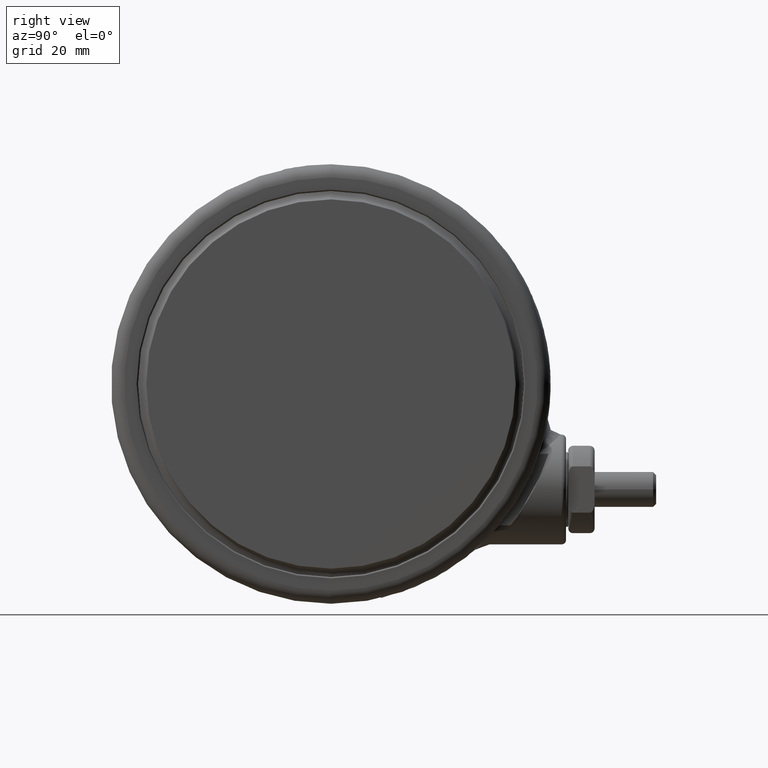
[diagram: clean part render]
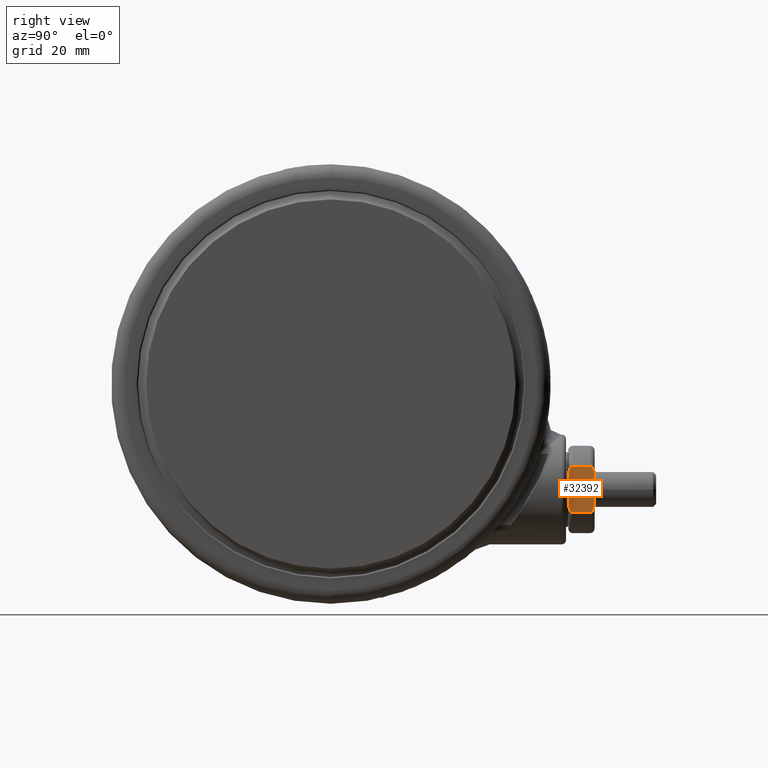
[diagram: same view with one face highlighted and labeled with its STEP entity id]
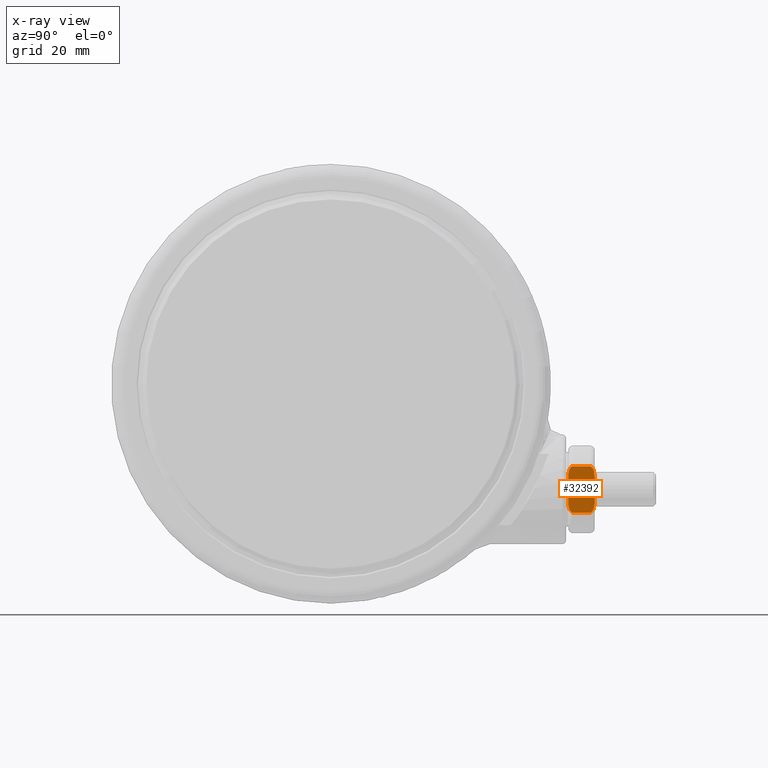
[diagram: x-ray of the same camera — body ghosted, the highlighted face saturated]
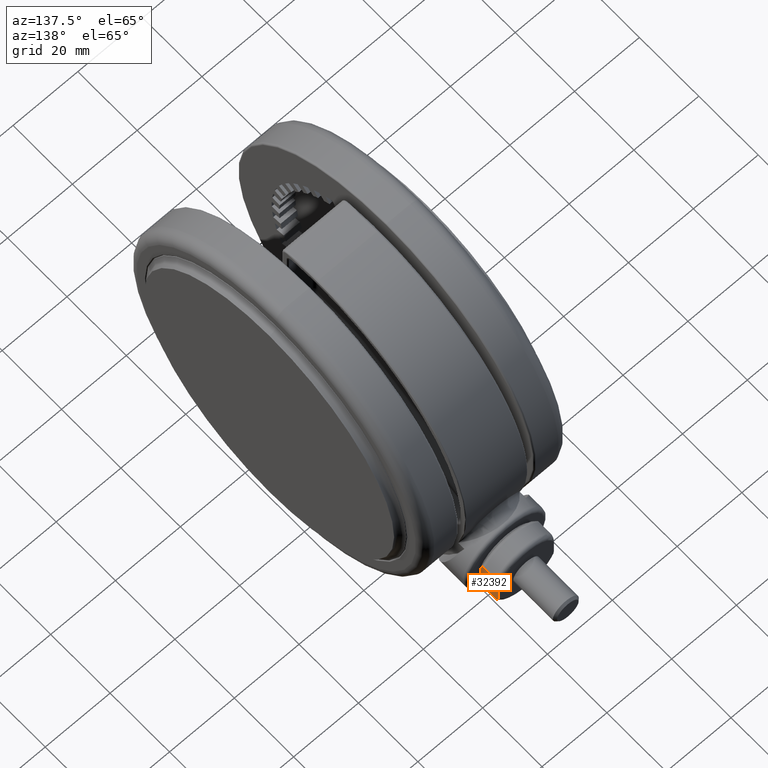
[diagram: same view with one face highlighted and labeled with its STEP entity id]
A machine part, right view. The second image highlights one B-rep face of the part: STEP entity #32392.
The next image is the same camera in x-ray: the body ghosted, the highlighted face saturated — about 0% of this face is hidden behind the body in this view.
A second angle (auxiliary view) of the same face is appended — the face is thin or edge-on in the first view.
In plain terms, the highlighted planar face has unit normal (-1, -0, 0).
Its self-contained STEP definition (entity closure, byte-faithful):
#11 = CARTESIAN_POINT ( 'NONE',  ( 20.33594577717705600, 59.94639196558829000, -15.80000000000000800 ) ) ;
#434 = DIRECTION ( 'NONE',  ( 1.000000000000000000, 1.161330068381886000E-016, -1.224646799147352000E-016 ) ) ;
#497 = EDGE_CURVE ( 'NONE', #23748, #32051, #22690, .T. ) ;
#1312 = CARTESIAN_POINT ( 'NONE',  ( 29.26782687642636200, 58.90000000000003400, -15.80000000000000800 ) ) ;
#1574 = PLANE ( 'NONE',  #25336 ) ;
#1997 = CARTESIAN_POINT ( 'NONE',  ( 18.92545952693666000, 54.62624462623588100, -15.80000000000000800 ) ) ;
#2273 = CARTESIAN_POINT ( 'NONE',  ( 29.22161234199456100, 59.15760131995573100, -15.80000000000000400 ) ) ;
#2382 = CARTESIAN_POINT ( 'NONE',  ( 28.41236036611224900, 59.77067842900429900, -15.80000000000001500 ) ) ;
#2504 = CARTESIAN_POINT ( 'NONE',  ( 19.58164743081571800, 59.77626978432886100, -15.80000000000000800 ) ) ;
#2711 = CARTESIAN_POINT ( 'NONE',  ( 18.73217312357362400, 60.00000000000003600, -15.80000000000000800 ) ) ;
#3355 = LINE ( 'NONE', #2711, #29131 ) ;
#3371 = CARTESIAN_POINT ( 'NONE',  ( 27.66405422282292600, 54.05360803441173800, -15.80000000000000800 ) ) ;
#3421 = CARTESIAN_POINT ( 'NONE',  ( 21.36181880834541500, 54.00000000000003600, -15.80000000000000800 ) ) ;
#3933 = EDGE_CURVE ( 'NONE', #13857, #32051, #3355, .T. ) ;
#4069 = DIRECTION ( 'NONE',  ( 1.161330068381886000E-016, -1.000000000000000000, -4.413456915335259200E-017 ) ) ;
#4494 = CARTESIAN_POINT ( 'NONE',  ( 19.23529851971524000, 54.38852524621129400, -15.80000000000000800 ) ) ;
#4628 = VERTEX_POINT ( 'NONE', #3421 ) ;
#4764 = CARTESIAN_POINT ( 'NONE',  ( 29.26782687642636200, 58.90000000000003400, -15.80000000000000800 ) ) ;
#4876 = CARTESIAN_POINT ( 'NONE',  ( 27.91544957079377200, 59.90920059051454400, -15.80000000000001500 ) ) ;
#4995 = CARTESIAN_POINT ( 'NONE',  ( 19.02258604484569200, 59.46230101232291800, -15.80000000000000800 ) ) ;
#5033 = B_SPLINE_CURVE_WITH_KNOTS ( 'NONE', 3,
 ( #30812, #23251, #18338, #3371, #20832, #5864, #23360, #8394, #25868, #10906, #28371, #13413 ),
 .UNSPECIFIED., .F., .F.,
 ( 4, 2, 2, 2, 2, 4 ),
 ( 0.0000000000000000000, 0.0007701095471471806900, 0.001540219094294361400, 0.002310328641441542200, 0.002695383415015126400, 0.003080438188588710600 ),
 .UNSPECIFIED. ) ;
#5486 = EDGE_CURVE ( 'NONE', #13857, #27792, #21272, .T. ) ;
#5494 = DIRECTION ( 'NONE',  ( 1.161330068381886000E-016, -1.000000000000000000, -4.413456915335259200E-017 ) ) ;
#5864 = CARTESIAN_POINT ( 'NONE',  ( 28.41835256918427500, 54.22373021567121800, -15.80000000000000800 ) ) ;
#6999 = CARTESIAN_POINT ( 'NONE',  ( 19.58763963388775400, 54.22932157099580100, -15.80000000000000800 ) ) ;
#7246 = CARTESIAN_POINT ( 'NONE',  ( 26.63818119165457400, 54.00000000000003600, -15.80000000000000800 ) ) ;
#7393 = CARTESIAN_POINT ( 'NONE',  ( 27.15303954897143900, 59.99224030502899300, -15.80000000000000400 ) ) ;
#7506 = CARTESIAN_POINT ( 'NONE',  ( 18.77870012500810800, 59.15795326585612200, -15.80000000000000800 ) ) ;
#8394 = CARTESIAN_POINT ( 'NONE',  ( 28.97741395515430800, 54.53769898767711800, -15.80000000000000400 ) ) ;
#9522 = CARTESIAN_POINT ( 'NONE',  ( 20.08455042920623200, 54.09079940948554800, -15.80000000000001500 ) ) ;
#9713 = LINE ( 'NONE', #27891, #21445 ) ;
#9913 = CARTESIAN_POINT ( 'NONE',  ( 26.63818119165457400, 60.00000000000003600, -15.80000000000000800 ) ) ;
#10030 = CARTESIAN_POINT ( 'NONE',  ( 18.73217312357362400, 58.90000000000003400, -15.80000000000000800 ) ) ;
#10339 = CARTESIAN_POINT ( 'NONE',  ( 18.73217312357362400, 54.00000000000003600, -15.80000000000000800 ) ) ;
#10387 = ORIENTED_EDGE ( 'NONE', *, *, #23649, .T. ) ;
#10906 = CARTESIAN_POINT ( 'NONE',  ( 29.22129987499188200, 54.84204673414397000, -15.80000000000000800 ) ) ;
#11331 = VECTOR ( 'NONE', #29424, 1000.000000000000000 ) ;
#12037 = CARTESIAN_POINT ( 'NONE',  ( 20.84696045102855400, 54.00775969497107100, -15.80000000000000800 ) ) ;
#12426 = CARTESIAN_POINT ( 'NONE',  ( 21.10424727586531900, 60.00000000000003600, -15.80000000000001100 ) ) ;
#13413 = CARTESIAN_POINT ( 'NONE',  ( 29.26782687642636600, 55.10000000000003700, -15.80000000000000800 ) ) ;
#13857 = VERTEX_POINT ( 'NONE', #30840 ) ;
#14016 = CARTESIAN_POINT ( 'NONE',  ( 18.73217312357362400, 60.00000000000003600, -15.80000000000000800 ) ) ;
#14533 = CARTESIAN_POINT ( 'NONE',  ( 21.36181880834541500, 54.00000000000003600, -15.80000000000000800 ) ) ;
#14818 = CARTESIAN_POINT ( 'NONE',  ( 28.97791877551098600, 59.46215408130819900, -15.80000000000000400 ) ) ;
#14919 = CARTESIAN_POINT ( 'NONE',  ( 21.36181880834541100, 60.00000000000003600, -15.80000000000000800 ) ) ;
#15226 = CARTESIAN_POINT ( 'NONE',  ( 26.63818119165457400, 60.00000000000003600, -15.80000000000000800 ) ) ;
#16301 = EDGE_LOOP ( 'NONE', ( #20784, #17809, #29777, #23814, #20617, #10387, #30941, #28613 ) ) ;
#16792 = VERTEX_POINT ( 'NONE', #22371 ) ;
#16946 = CARTESIAN_POINT ( 'NONE',  ( 18.77838765800542500, 54.84239868004431200, -15.80000000000000800 ) ) ;
#17331 = CARTESIAN_POINT ( 'NONE',  ( 28.65037410100447000, 59.67075768819042000, -15.80000000000000800 ) ) ;
#17448 = CARTESIAN_POINT ( 'NONE',  ( 20.07964047181428300, 59.90834723970846900, -15.80000000000000800 ) ) ;
#17651 = B_SPLINE_CURVE_WITH_KNOTS ( 'NONE', 3,
 ( #24381, #31931, #16946, #1997, #19471, #4494, #21980, #6999, #24486, #9522, #26992, #12037, #29535, #14533 ),
 .UNSPECIFIED., .F., .F.,
 ( 4, 2, 2, 2, 2, 2, 4 ),
 ( 0.0000000000000000000, 0.0003884959165285386000, 0.0007769918330570771900, 0.001165487749585615800, 0.001553983666114154400, 0.002330975499171236400, 0.003107967332228318300 ),
 .UNSPECIFIED. ) ;
#17809 = ORIENTED_EDGE ( 'NONE', *, *, #5486, .T. ) ;
#18338 = CARTESIAN_POINT ( 'NONE',  ( 27.15268964969410300, 54.00770887567938400, -15.80000000000000800 ) ) ;
#18799 = EDGE_CURVE ( 'NONE', #23748, #25784, #31285, .T. ) ;
#19471 = CARTESIAN_POINT ( 'NONE',  ( 19.02208122448899300, 54.53784591869184300, -15.80000000000000400 ) ) ;
#19850 = CARTESIAN_POINT ( 'NONE',  ( 28.28820403779656100, 59.81100489386638900, -15.80000000000000800 ) ) ;
#19967 = CARTESIAN_POINT ( 'NONE',  ( 19.33626403298172700, 59.68259175217173900, -15.80000000000000400 ) ) ;
#20617 = ORIENTED_EDGE ( 'NONE', *, *, #25367, .T. ) ;
#20784 = ORIENTED_EDGE ( 'NONE', *, *, #3933, .F. ) ;
#20832 = CARTESIAN_POINT ( 'NONE',  ( 27.92035952818571300, 54.09165276029160900, -15.80000000000000800 ) ) ;
#21208 = VERTEX_POINT ( 'NONE', #7246 ) ;
#21272 = B_SPLINE_CURVE_WITH_KNOTS ( 'NONE', 3,
 ( #14919, #12426, #29915, #11, #17448, #2504, #19967, #4995, #22480, #7506, #24994, #10030 ),
 .UNSPECIFIED., .F., .F.,
 ( 4, 2, 2, 2, 2, 4 ),
 ( 0.0000000000000000000, 0.0007701095471471730000, 0.001540219094294346000, 0.002310328641441518800, 0.002695383415015111200, 0.003080438188588704100 ),
 .UNSPECIFIED. ) ;
#21374 = EDGE_CURVE ( 'NONE', #27792, #16792, #9713, .T. ) ;
#21445 = VECTOR ( 'NONE', #5494, 1000.000000000000000 ) ;
#21980 = CARTESIAN_POINT ( 'NONE',  ( 19.34962589899552300, 54.32924231180964400, -15.80000000000000400 ) ) ;
#22369 = CARTESIAN_POINT ( 'NONE',  ( 27.66275141158789500, 59.94652828027169300, -15.80000000000001100 ) ) ;
#22371 = CARTESIAN_POINT ( 'NONE',  ( 18.73217312357362400, 55.10000000000003000, -15.80000000000000800 ) ) ;
#22480 = CARTESIAN_POINT ( 'NONE',  ( 18.92471915931157200, 59.37277422114561200, -15.80000000000000400 ) ) ;
#22690 = B_SPLINE_CURVE_WITH_KNOTS ( 'NONE', 3,
 ( #4764, #27263, #2273, #29805, #14818, #32307, #17331, #2382, #19850, #4876, #22369, #7393, #24875, #9913 ),
 .UNSPECIFIED., .F., .F.,
 ( 4, 2, 2, 2, 2, 2, 4 ),
 ( 0.0000000000000000000, 0.0003884959165285354000, 0.0007769918330570708000, 0.001165487749585606200, 0.001553983666114141600, 0.002330975499171217300, 0.003107967332228293600 ),
 .UNSPECIFIED. ) ;
#23153 = LINE ( 'NONE', #10339, #29003 ) ;
#23251 = CARTESIAN_POINT ( 'NONE',  ( 26.89575272413466300, 54.00000000000003600, -15.80000000000001100 ) ) ;
#23360 = CARTESIAN_POINT ( 'NONE',  ( 28.66373596701825800, 54.31740824782831100, -15.80000000000000400 ) ) ;
#23649 = EDGE_CURVE ( 'NONE', #21208, #25784, #5033, .T. ) ;
#23748 = VERTEX_POINT ( 'NONE', #1312 ) ;
#23814 = ORIENTED_EDGE ( 'NONE', *, *, #27567, .T. ) ;
#24381 = CARTESIAN_POINT ( 'NONE',  ( 18.73217312357362400, 55.10000000000003000, -15.80000000000000800 ) ) ;
#24386 = CARTESIAN_POINT ( 'NONE',  ( 29.26782687642636200, 60.00000000000003600, -15.80000000000000800 ) ) ;
#24486 = CARTESIAN_POINT ( 'NONE',  ( 19.71179596220342800, 54.18899510613368900, -15.80000000000000400 ) ) ;
#24496 = CARTESIAN_POINT ( 'NONE',  ( 29.26782687642636600, 55.10000000000003700, -15.80000000000000800 ) ) ;
#24875 = CARTESIAN_POINT ( 'NONE',  ( 26.89554108775182000, 60.00000000000002800, -15.80000000000000400 ) ) ;
#24887 = FACE_OUTER_BOUND ( 'NONE', #16301, .T. ) ;
#24994 = CARTESIAN_POINT ( 'NONE',  ( 18.73217312357341100, 59.03146747588124300, -15.80000000000001100 ) ) ;
#25195 = DIRECTION ( 'NONE',  ( 1.000000000000000000, 1.161330068381886000E-016, -1.224646799147352000E-016 ) ) ;
#25336 = AXIS2_PLACEMENT_3D ( 'NONE', #14016, #28986, #4069 ) ;
#25367 = EDGE_CURVE ( 'NONE', #4628, #21208, #23153, .T. ) ;
#25784 = VERTEX_POINT ( 'NONE', #24496 ) ;
#25868 = CARTESIAN_POINT ( 'NONE',  ( 29.07528084068841800, 54.62722577885441700, -15.80000000000000100 ) ) ;
#26992 = CARTESIAN_POINT ( 'NONE',  ( 20.33724858841210900, 54.05347171972840000, -15.80000000000000800 ) ) ;
#27263 = CARTESIAN_POINT ( 'NONE',  ( 29.26782687642635500, 59.03150044679937000, -15.80000000000000800 ) ) ;
#27567 = EDGE_CURVE ( 'NONE', #16792, #4628, #17651, .T. ) ;
#27792 = VERTEX_POINT ( 'NONE', #30524 ) ;
#27891 = CARTESIAN_POINT ( 'NONE',  ( 18.73217312357362400, 60.00000000000003600, -15.80000000000000800 ) ) ;
#28371 = CARTESIAN_POINT ( 'NONE',  ( 29.26782687642659300, 54.96853252411884200, -15.80000000000001100 ) ) ;
#28613 = ORIENTED_EDGE ( 'NONE', *, *, #497, .T. ) ;
#28986 = DIRECTION ( 'NONE',  ( -1.224646799147352000E-016, 4.413456915335257900E-017, -1.000000000000000000 ) ) ;
#29003 = VECTOR ( 'NONE', #434, 1000.000000000000000 ) ;
#29131 = VECTOR ( 'NONE', #25195, 1000.000000000000000 ) ;
#29424 = DIRECTION ( 'NONE',  ( 1.161330068381886000E-016, -1.000000000000000000, -4.413456915335259200E-017 ) ) ;
#29535 = CARTESIAN_POINT ( 'NONE',  ( 21.10445891224817300, 54.00000000000005000, -15.80000000000001100 ) ) ;
#29777 = ORIENTED_EDGE ( 'NONE', *, *, #21374, .T. ) ;
#29805 = CARTESIAN_POINT ( 'NONE',  ( 29.07454047306333000, 59.37375537376418300, -15.80000000000000400 ) ) ;
#29915 = CARTESIAN_POINT ( 'NONE',  ( 20.84731035030588600, 59.99229112432069400, -15.80000000000000800 ) ) ;
#30524 = CARTESIAN_POINT ( 'NONE',  ( 18.73217312357362400, 58.90000000000003400, -15.80000000000000800 ) ) ;
#30812 = CARTESIAN_POINT ( 'NONE',  ( 26.63818119165457400, 54.00000000000003600, -15.80000000000000800 ) ) ;
#30840 = CARTESIAN_POINT ( 'NONE',  ( 21.36181880834541100, 60.00000000000003600, -15.80000000000000800 ) ) ;
#30941 = ORIENTED_EDGE ( 'NONE', *, *, #18799, .F. ) ;
#31285 = LINE ( 'NONE', #24386, #11331 ) ;
#31931 = CARTESIAN_POINT ( 'NONE',  ( 18.73217312357362700, 54.96849955320071500, -15.80000000000001500 ) ) ;
#32051 = VERTEX_POINT ( 'NONE', #15226 ) ;
#32307 = CARTESIAN_POINT ( 'NONE',  ( 28.76470148028474600, 59.61147475378878400, -15.80000000000000800 ) ) ;
#32392 = ADVANCED_FACE ( 'NONE', ( #24887 ), #1574, .F. ) ;